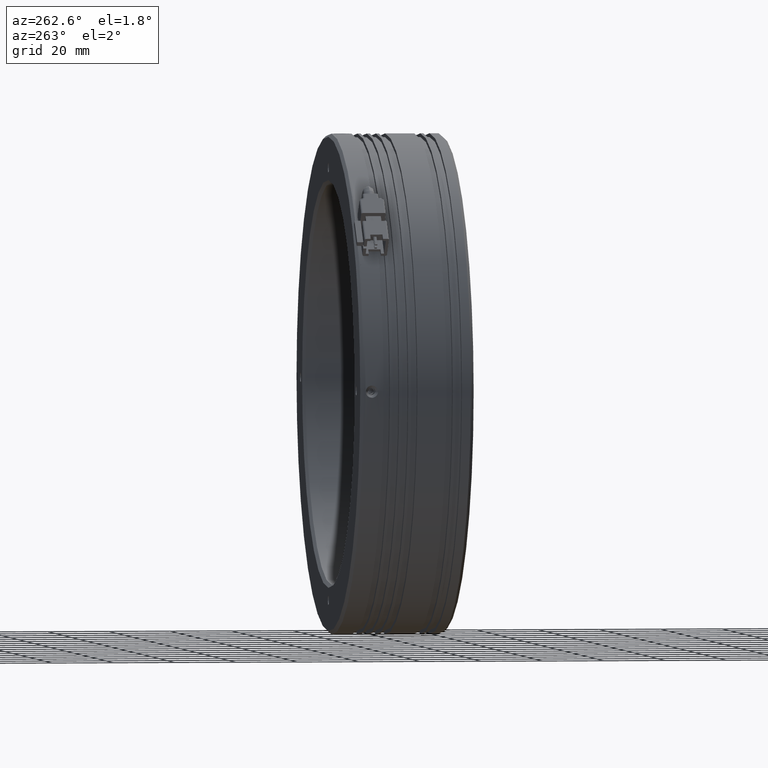
[diagram: clean part render]
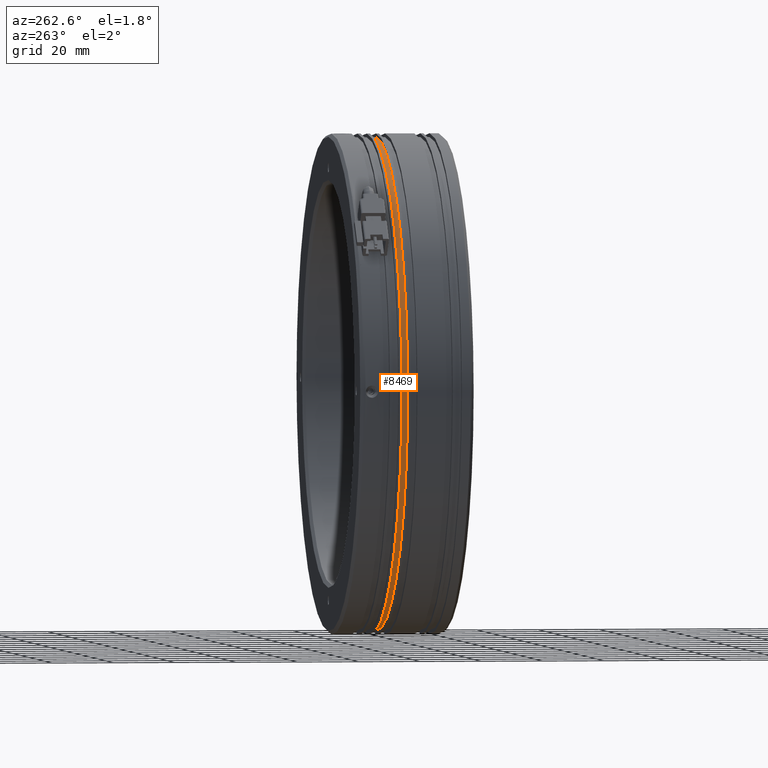
[diagram: same view with one face highlighted and labeled with its STEP entity id]
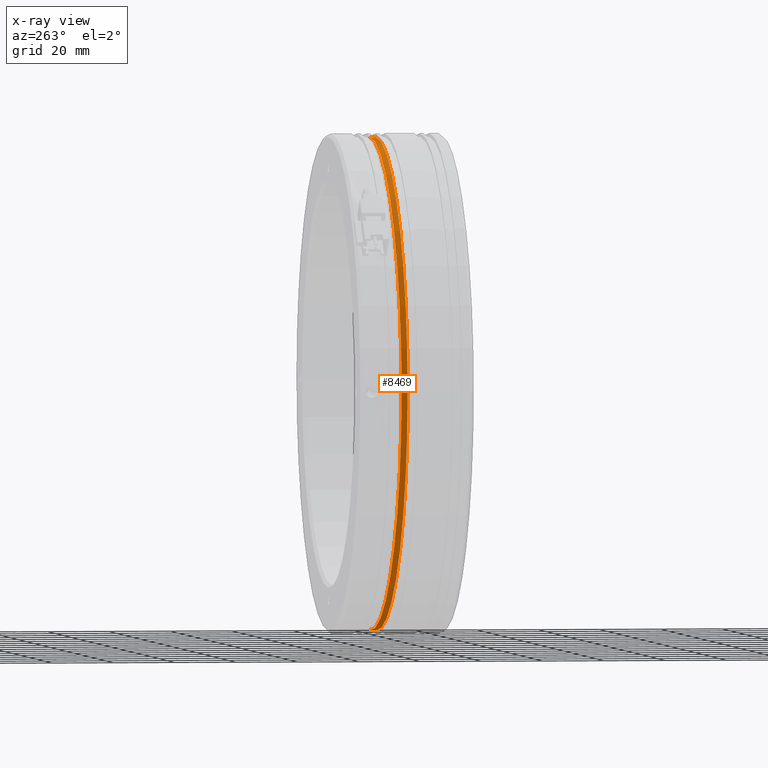
[diagram: x-ray of the same camera — body ghosted, the highlighted face saturated]
A machine part, auxiliary view. The second image highlights one B-rep face of the part: STEP entity #8469.
The next image is the same camera in x-ray: the body ghosted, the highlighted face saturated — about 0% of this face is hidden behind the body in this view.
In plain terms, the highlighted cylindrical surface (partial cylindrical patch) has radius 79.8 mm, axis along (-0, -1, -0).
Its self-contained STEP definition (entity closure, byte-faithful):
#830 = LINE ( 'NONE', #13010, #3468 ) ;
#1356 = ORIENTED_EDGE ( 'NONE', *, *, #11562, .T. ) ;
#1751 = CARTESIAN_POINT ( 'NONE',  ( -9.785022266880025300, -37.73097191106735000, 79.79999999999992600 ) ) ;
#1861 = ORIENTED_EDGE ( 'NONE', *, *, #11636, .T. ) ;
#1910 = CARTESIAN_POINT ( 'NONE',  ( -9.785022266880036000, 14.37111437184006300, -79.79999999999992600 ) ) ;
#2082 = VERTEX_POINT ( 'NONE', #12790 ) ;
#2378 = FACE_OUTER_BOUND ( 'NONE', #5979, .T. ) ;
#2510 = VERTEX_POINT ( 'NONE', #3532 ) ;
#2914 = CARTESIAN_POINT ( 'NONE',  ( -9.785022266880036000, 12.37111437184005400, -79.79999999999992600 ) ) ;
#3468 = VECTOR ( 'NONE', #5891, 1000.000000000000000 ) ;
#3532 = CARTESIAN_POINT ( 'NONE',  ( -9.785022266880025300, 12.37111437184005400, 79.79999999999992600 ) ) ;
#4432 = VERTEX_POINT ( 'NONE', #1910 ) ;
#4522 = CARTESIAN_POINT ( 'NONE',  ( -9.785022266880036000, 12.37111437184005400, 0.0000000000000000000 ) ) ;
#5566 = DIRECTION ( 'NONE',  ( 0.0000000000000000000, 0.0000000000000000000, -1.000000000000000000 ) ) ;
#5664 = ORIENTED_EDGE ( 'NONE', *, *, #6247, .F. ) ;
#5707 = DIRECTION ( 'NONE',  ( -0.0000000000000000000, -1.000000000000000000, -0.0000000000000000000 ) ) ;
#5891 = DIRECTION ( 'NONE',  ( -0.0000000000000000000, -1.000000000000000000, -0.0000000000000000000 ) ) ;
#5979 = EDGE_LOOP ( 'NONE', ( #5664, #1861, #11315, #1356 ) ) ;
#6247 = EDGE_CURVE ( 'NONE', #2082, #2510, #12863, .T. ) ;
#6355 = EDGE_CURVE ( 'NONE', #4432, #6832, #830, .T. ) ;
#6832 = VERTEX_POINT ( 'NONE', #2914 ) ;
#6987 = DIRECTION ( 'NONE',  ( 0.0000000000000000000, 0.0000000000000000000, -1.000000000000000000 ) ) ;
#7418 = VECTOR ( 'NONE', #8799, 1000.000000000000000 ) ;
#7590 = AXIS2_PLACEMENT_3D ( 'NONE', #11789, #5707, #12816 ) ;
#7858 = CIRCLE ( 'NONE', #12721, 79.79999999999992600 ) ;
#8469 = ADVANCED_FACE ( 'NONE', ( #2378 ), #9154, .T. ) ;
#8799 = DIRECTION ( 'NONE',  ( -0.0000000000000000000, -1.000000000000000000, -0.0000000000000000000 ) ) ;
#8939 = CIRCLE ( 'NONE', #7590, 79.79999999999992600 ) ;
#8966 = CARTESIAN_POINT ( 'NONE',  ( -9.785022266880036000, -37.73097191106735000, 0.0000000000000000000 ) ) ;
#9154 = CYLINDRICAL_SURFACE ( 'NONE', #9328, 79.79999999999992600 ) ;
#9328 = AXIS2_PLACEMENT_3D ( 'NONE', #8966, #11006, #6987 ) ;
#11006 = DIRECTION ( 'NONE',  ( -0.0000000000000000000, -1.000000000000000000, -0.0000000000000000000 ) ) ;
#11315 = ORIENTED_EDGE ( 'NONE', *, *, #6355, .T. ) ;
#11562 = EDGE_CURVE ( 'NONE', #6832, #2510, #7858, .T. ) ;
#11636 = EDGE_CURVE ( 'NONE', #2082, #4432, #8939, .T. ) ;
#11648 = DIRECTION ( 'NONE',  ( 0.0000000000000000000, 1.000000000000000000, 0.0000000000000000000 ) ) ;
#11789 = CARTESIAN_POINT ( 'NONE',  ( -9.785022266880036000, 14.37111437184006300, 0.0000000000000000000 ) ) ;
#12721 = AXIS2_PLACEMENT_3D ( 'NONE', #4522, #11648, #5566 ) ;
#12790 = CARTESIAN_POINT ( 'NONE',  ( -9.785022266880025300, 14.37111437184006300, 79.79999999999992600 ) ) ;
#12816 = DIRECTION ( 'NONE',  ( 0.0000000000000000000, 0.0000000000000000000, -1.000000000000000000 ) ) ;
#12863 = LINE ( 'NONE', #1751, #7418 ) ;
#13010 = CARTESIAN_POINT ( 'NONE',  ( -9.785022266880036000, -37.73097191106735000, -79.79999999999992600 ) ) ;